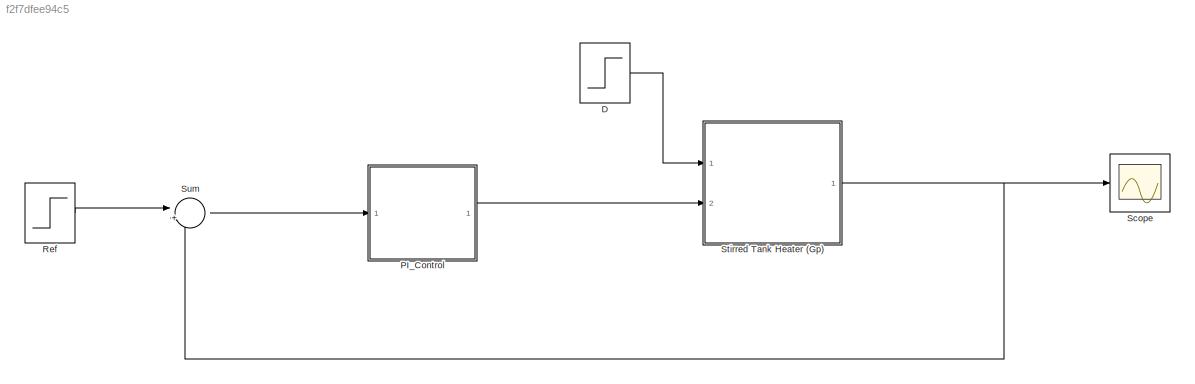
MODEL slx_f2f7dfee94c5
KIND model
CONFIG AbsTol = auto
CONFIG EnableMultiTasking = off
CONFIG FixedStep = auto
CONFIG MaxStep = auto
CONFIG MinStep = auto
CONFIG RelTol = 1e-3
CONFIG SampleTimeConstraint = Unconstrained
CONFIG Solver = VariableStepAuto
CONFIG SolverName = VariableStepAuto
CONFIG StartTime = 0.0
CONFIG StopTime = 4
BLOCK [Step] D
  After = 0
  SampleTime = 0.01
  Time = 2
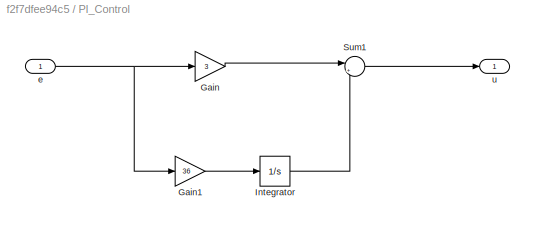
BLOCK [SubSystem] PI_Control
  Ports = [1, 1]
  RequestExecContextInheritance = off
  Variant = off
BLOCK [Gain] PI_Control/Gain
  Gain = 3
  OutDataTypeStr = Inherit: Inherit via internal rule
  ParamDataTypeStr = Inherit: Inherit via internal rule
  SaturateOnIntegerOverflow = off
BLOCK [Gain] PI_Control/Gain1
  Gain = 36
  OutDataTypeStr = Inherit: Inherit via internal rule
  ParamDataTypeStr = Inherit: Inherit via internal rule
  SaturateOnIntegerOverflow = off
BLOCK [Integrator] PI_Control/Integrator
  Ports = [1, 1]
BLOCK [Sum] PI_Control/Sum1
  IconShape = round
  InputSameDT = off
  Inputs = |++
  OutDataTypeStr = Inherit: Inherit via internal rule
  Ports = [2, 1]
  SaturateOnIntegerOverflow = off
BLOCK [Inport] PI_Control/e
  IconDisplay = Port number
BLOCK [Outport] PI_Control/u
  IconDisplay = Port number
BLOCK [Step] Ref
  SampleTime = 0.01
  Time = 0
BLOCK [Scope] Scope
  NumInputPorts = 1
  Ports = [1]
  ScopeSpecificationString = Simulink.scopes.TimeScopeBlockCfg('CurrentConfiguration', extmgr.ConfigurationSet(extmgr.Configuration('Core','General UI',true),extmgr.Configuration('Core','Source UI',true),extmgr.Configuration('Sources','WiredSimulink',true,'DataLoggingVariableName','ScopeData1','DataLoggingSaveFormat','Array'),extmgr.Configuration('Visuals','Time Domain',true,'SerializedDisplays',{struct('MinYLimReal','-0.1384...<+1445ch>
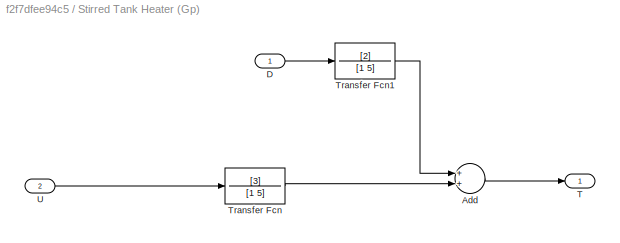
BLOCK [SubSystem] Stirred Tank Heater (Gp)
  Ports = [2, 1]
  RequestExecContextInheritance = off
  Variant = off
BLOCK [Sum] Stirred Tank Heater (Gp)/Add
  InputSameDT = off
  OutDataTypeStr = Inherit: Inherit via internal rule
  Ports = [2, 1]
  SaturateOnIntegerOverflow = off
BLOCK [Inport] Stirred Tank Heater (Gp)/D
  IconDisplay = Port number
BLOCK [Outport] Stirred Tank Heater (Gp)/T
  IconDisplay = Port number
BLOCK [TransferFcn] Stirred Tank Heater (Gp)/Transfer Fcn
  Denominator = [1 5]
  Numerator = [3]
BLOCK [TransferFcn] Stirred Tank Heater (Gp)/Transfer Fcn1
  Denominator = [1 5]
  Numerator = [2]
BLOCK [Inport] Stirred Tank Heater (Gp)/U
  IconDisplay = Port number
  Port = 2
BLOCK [Sum] Sum
  IconShape = round
  InputSameDT = off
  Inputs = |+-
  OutDataTypeStr = Inherit: Inherit via internal rule
  Ports = [2, 1]
  SaturateOnIntegerOverflow = off
LINE D:1 -> Stirred Tank Heater (Gp):1
LINE PI_Control/Gain1:1 -> PI_Control/Integrator:1
LINE PI_Control/Gain:1 -> PI_Control/Sum1:1
LINE PI_Control/Integrator:1 -> PI_Control/Sum1:2
LINE PI_Control/Sum1:1 -> PI_Control/u:1
NET PI_Control/e:1 -> PI_Control/Gain1:1, PI_Control/Gain:1
LINE PI_Control:1 -> Stirred Tank Heater (Gp):2
LINE Ref:1 -> Sum:1
LINE Stirred Tank Heater (Gp)/Add:1 -> Stirred Tank Heater (Gp)/T:1
LINE Stirred Tank Heater (Gp)/D:1 -> Stirred Tank Heater (Gp)/Transfer Fcn1:1
LINE Stirred Tank Heater (Gp)/Transfer Fcn1:1 -> Stirred Tank Heater (Gp)/Add:1
LINE Stirred Tank Heater (Gp)/Transfer Fcn:1 -> Stirred Tank Heater (Gp)/Add:2
LINE Stirred Tank Heater (Gp)/U:1 -> Stirred Tank Heater (Gp)/Transfer Fcn:1
NET Stirred Tank Heater (Gp):1 -> Scope:1, Sum:2
LINE Sum:1 -> PI_Control:1
note: NET lines group one-source signal fan-out (src -> all destinations, sorted); 1:1 wires keep LINE
